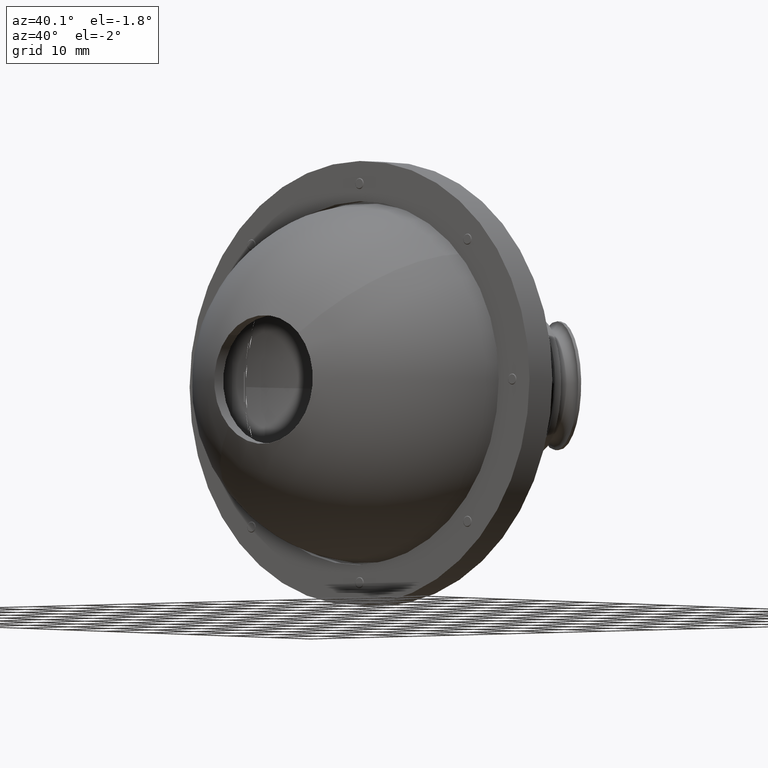
[diagram: clean part render]
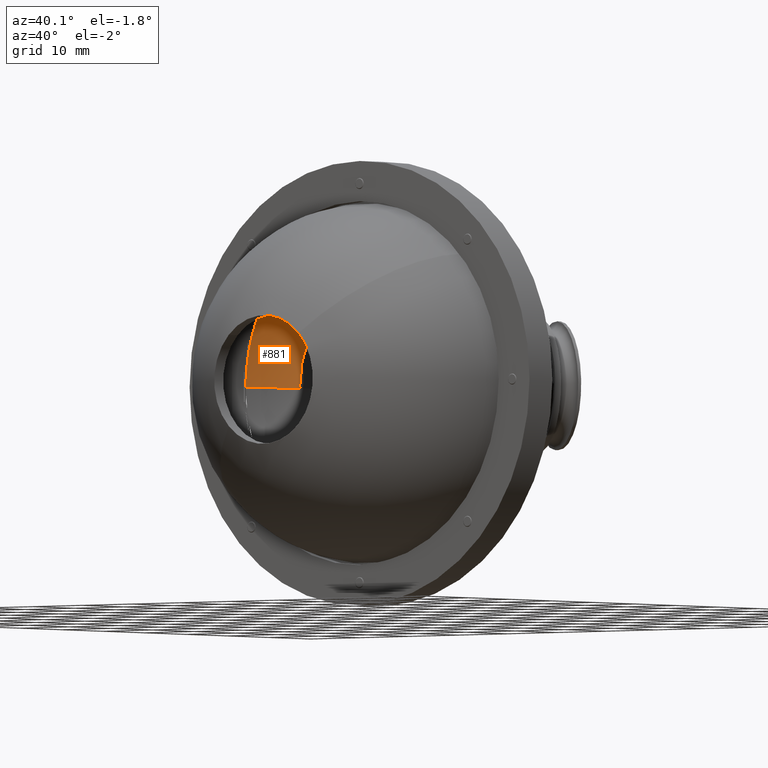
[diagram: same view with one face highlighted and labeled with its STEP entity id]
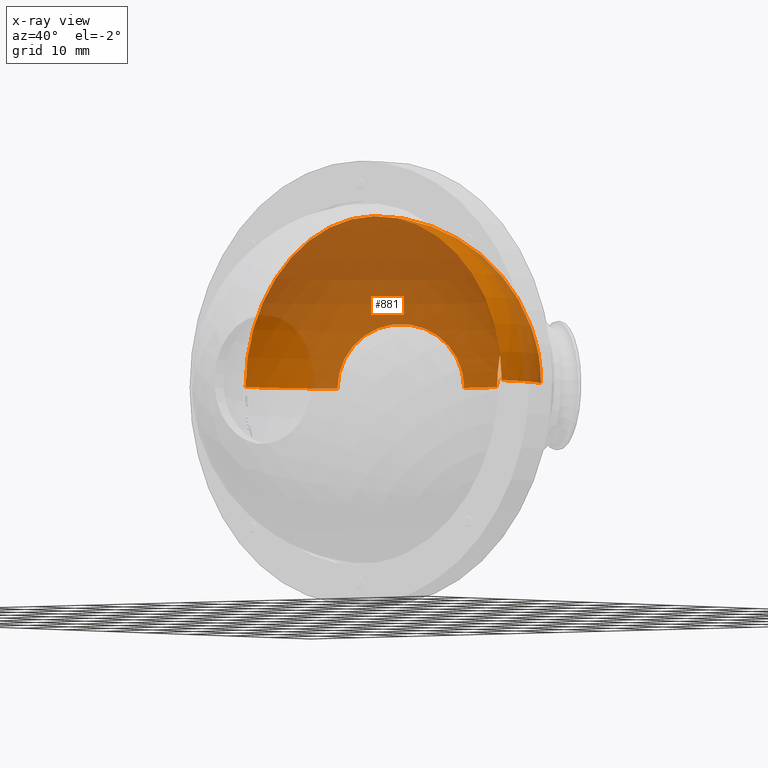
[diagram: x-ray of the same camera — body ghosted, the highlighted face saturated]
A machine part, auxiliary view. The second image highlights one B-rep face of the part: STEP entity #881.
The next image is the same camera in x-ray: the body ghosted, the highlighted face saturated — about 79% of this face is hidden behind the body in this view.
In plain terms, the highlighted spherical surface has radius 26 mm.
Its self-contained STEP definition (entity closure, byte-faithful):
#52 = AXIS2_PLACEMENT_3D ( 'NONE', #7533, #6990, #7609 ) ;
#227 = EDGE_CURVE ( 'NONE', #5536, #6873, #5205, .T. ) ;
#247 = ORIENTED_EDGE ( 'NONE', *, *, #227, .F. ) ;
#323 = EDGE_CURVE ( 'NONE', #1775, #6188, #1527, .T. ) ;
#390 = CIRCLE ( 'NONE', #5661, 26.00000000000000711 ) ;
#447 = DIRECTION ( 'NONE',  ( -0.000000000000000000, -1.000000000000000000, -0.000000000000000000 ) ) ;
#580 = AXIS2_PLACEMENT_3D ( 'NONE', #5095, #2021, #3327 ) ;
#583 = VERTEX_POINT ( 'NONE', #4400 ) ;
#881 = ADVANCED_FACE ( 'NONE', ( #3736 ), #3129, .F. ) ;
#1221 = CIRCLE ( 'NONE', #2216, 26.00000000000000355 ) ;
#1275 = EDGE_CURVE ( 'NONE', #583, #6194, #1221, .T. ) ;
#1506 = DIRECTION ( 'NONE',  ( 0.4999999999999975575, 0.8660254037844402619, 0.000000000000000000 ) ) ;
#1527 = CIRCLE ( 'NONE', #52, 26.00000000000000355 ) ;
#1640 = AXIS2_PLACEMENT_3D ( 'NONE', #2226, #7385, #5032 ) ;
#1730 = AXIS2_PLACEMENT_3D ( 'NONE', #4826, #2520, #7171 ) ;
#1775 = VERTEX_POINT ( 'NONE', #6759 ) ;
#2021 = DIRECTION ( 'NONE',  ( 1.224646799147353207E-16, -0.000000000000000000, 1.000000000000000000 ) ) ;
#2107 = CIRCLE ( 'NONE', #6401, 10.00000000000001421 ) ;
#2113 = CIRCLE ( 'NONE', #2965, 26.00000000000000355 ) ;
#2216 = AXIS2_PLACEMENT_3D ( 'NONE', #3246, #5596, #6674 ) ;
#2226 = CARTESIAN_POINT ( 'NONE',  ( -3.515981050391570939, 2.873743803642404337, 0.000000000000000000 ) ) ;
#2230 = EDGE_CURVE ( 'NONE', #6194, #3841, #2113, .T. ) ;
#2520 = DIRECTION ( 'NONE',  ( 0.000000000000000000, 0.000000000000000000, 1.000000000000000000 ) ) ;
#2600 = ORIENTED_EDGE ( 'NONE', *, *, #1275, .T. ) ;
#2709 = EDGE_CURVE ( 'NONE', #1775, #5536, #390, .T. ) ;
#2723 = CARTESIAN_POINT ( 'NONE',  ( -17.51598105039169440, -17.91086588718419748, 3.184081677783118585E-15 ) ) ;
#2740 = CARTESIAN_POINT ( 'NONE',  ( 5.144272987452839452, 7.873743803642351047, 4.090009202518991351E-16 ) ) ;
#2796 = EDGE_LOOP ( 'NONE', ( #4683, #2880, #7131, #2600, #7336, #7401, #247 ) ) ;
#2880 = ORIENTED_EDGE ( 'NONE', *, *, #323, .T. ) ;
#2913 = CARTESIAN_POINT ( 'NONE',  ( 8.484018949608307381, -17.91086588718419748, 0.000000000000000000 ) ) ;
#2965 = AXIS2_PLACEMENT_3D ( 'NONE', #4467, #447, #5057 ) ;
#2983 = EDGE_CURVE ( 'NONE', #6188, #583, #2107, .T. ) ;
#3129 = SPHERICAL_SURFACE ( 'NONE', #1730, 26.00000000000000355 ) ;
#3227 = DIRECTION ( 'NONE',  ( 0.8660254037844401509, -0.4999999999999974465, 0.000000000000000000 ) ) ;
#3246 = CARTESIAN_POINT ( 'NONE',  ( 8.484018949608307381, -17.91086588718419748, 0.000000000000000000 ) ) ;
#3327 = DIRECTION ( 'NONE',  ( 1.000000000000000000, 0.000000000000000000, -1.224646799147352961E-16 ) ) ;
#3380 = DIRECTION ( 'NONE',  ( 1.224646799147353207E-16, -0.000000000000000000, 1.000000000000000000 ) ) ;
#3429 = CARTESIAN_POINT ( 'NONE',  ( -12.17623508823598222, -2.126256196357539263, 2.530151397701719276E-15 ) ) ;
#3736 = FACE_OUTER_BOUND ( 'NONE', #2796, .T. ) ;
#3841 = VERTEX_POINT ( 'NONE', #2723 ) ;
#3876 = CIRCLE ( 'NONE', #580, 26.00000000000000711 ) ;
#4400 = CARTESIAN_POINT ( 'NONE',  ( 29.14427298745265915, -2.126256196357626749, 0.000000000000000000 ) ) ;
#4467 = CARTESIAN_POINT ( 'NONE',  ( 8.484018949608307381, -17.91086588718419748, 0.000000000000000000 ) ) ;
#4683 = ORIENTED_EDGE ( 'NONE', *, *, #2709, .F. ) ;
#4724 = DIRECTION ( 'NONE',  ( 1.000000000000000000, 0.000000000000000000, -1.224646799147352961E-16 ) ) ;
#4826 = CARTESIAN_POINT ( 'NONE',  ( 8.484018949608307381, -17.91086588718419748, 0.000000000000000000 ) ) ;
#5032 = DIRECTION ( 'NONE',  ( 0.8660254037844415942, 0.4999999999999948375, 0.000000000000000000 ) ) ;
#5040 = EDGE_CURVE ( 'NONE', #6873, #3841, #3876, .T. ) ;
#5057 = DIRECTION ( 'NONE',  ( 0.000000000000000000, 0.000000000000000000, -1.000000000000000000 ) ) ;
#5095 = CARTESIAN_POINT ( 'NONE',  ( 8.484018949608307381, -17.91086588718419748, 0.000000000000000000 ) ) ;
#5205 = CIRCLE ( 'NONE', #1640, 10.00000000000000000 ) ;
#5445 = CARTESIAN_POINT ( 'NONE',  ( 11.82376491176382771, 7.873743803642341277, 0.000000000000000000 ) ) ;
#5536 = VERTEX_POINT ( 'NONE', #2740 ) ;
#5596 = DIRECTION ( 'NONE',  ( 0.000000000000000000, 0.000000000000000000, -1.000000000000000000 ) ) ;
#5661 = AXIS2_PLACEMENT_3D ( 'NONE', #2913, #3380, #4724 ) ;
#6187 = CARTESIAN_POINT ( 'NONE',  ( 20.48401894960824521, 2.873743803642359040, 0.000000000000000000 ) ) ;
#6188 = VERTEX_POINT ( 'NONE', #5445 ) ;
#6194 = VERTEX_POINT ( 'NONE', #6676 ) ;
#6401 = AXIS2_PLACEMENT_3D ( 'NONE', #6187, #1506, #3227 ) ;
#6674 = DIRECTION ( 'NONE',  ( -1.000000000000000000, 0.000000000000000000, 0.000000000000000000 ) ) ;
#6676 = CARTESIAN_POINT ( 'NONE',  ( 34.48401894960831271, -17.91086588718419748, 0.000000000000000000 ) ) ;
#6759 = CARTESIAN_POINT ( 'NONE',  ( 8.484018949608309157, 8.089134112815802524, 0.000000000000000000 ) ) ;
#6873 = VERTEX_POINT ( 'NONE', #3429 ) ;
#6990 = DIRECTION ( 'NONE',  ( 0.000000000000000000, 0.000000000000000000, -1.000000000000000000 ) ) ;
#7131 = ORIENTED_EDGE ( 'NONE', *, *, #2983, .T. ) ;
#7171 = DIRECTION ( 'NONE',  ( 1.000000000000000000, 0.000000000000000000, 0.000000000000000000 ) ) ;
#7336 = ORIENTED_EDGE ( 'NONE', *, *, #2230, .T. ) ;
#7385 = DIRECTION ( 'NONE',  ( 0.4999999999999948375, -0.8660254037844415942, -0.000000000000000000 ) ) ;
#7401 = ORIENTED_EDGE ( 'NONE', *, *, #5040, .F. ) ;
#7533 = CARTESIAN_POINT ( 'NONE',  ( 8.484018949608307381, -17.91086588718419748, 0.000000000000000000 ) ) ;
#7609 = DIRECTION ( 'NONE',  ( -1.000000000000000000, 0.000000000000000000, 0.000000000000000000 ) ) ;